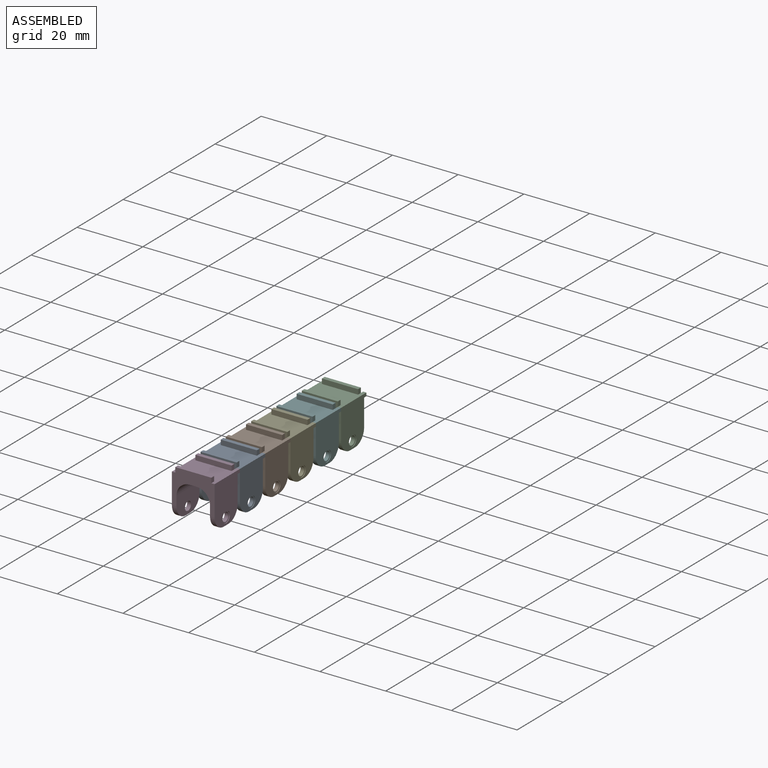
[diagram: assembled view]
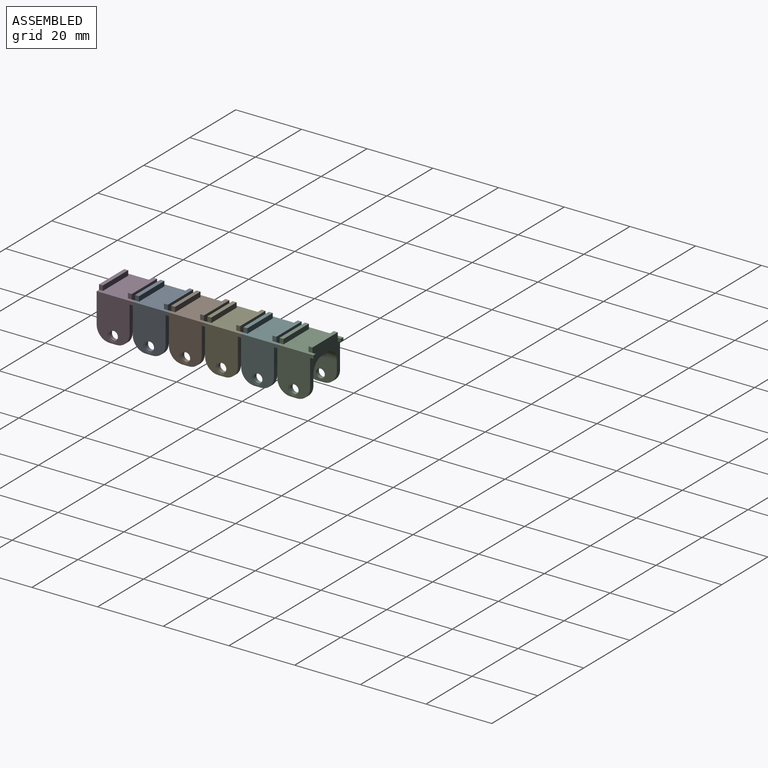
[diagram: assembled view, second angle]
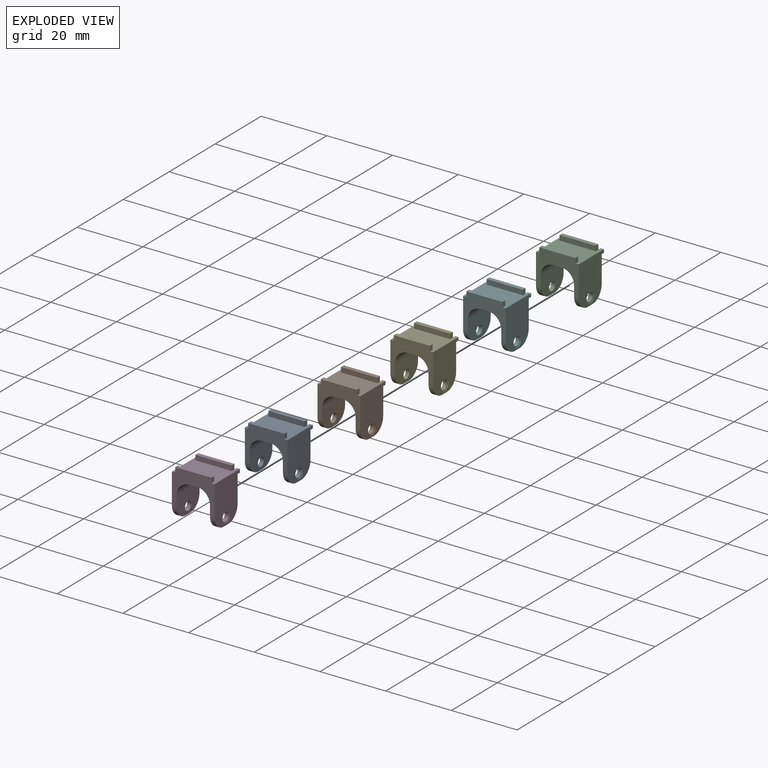
[diagram: exploded view]
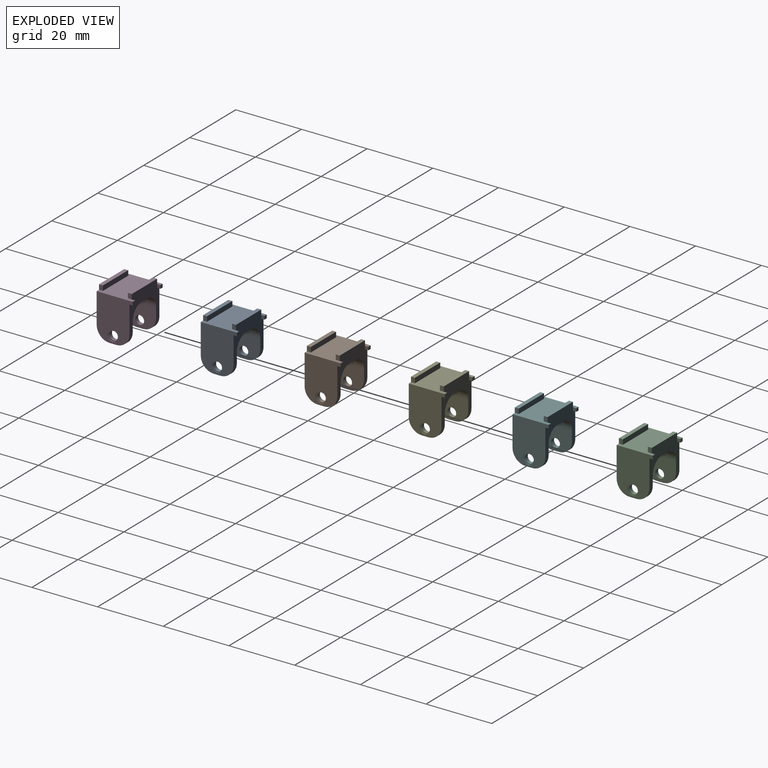
[diagram: exploded view, second angle]
ASSEMBLY  parts=6 mates=5
PART A: 36 faces, bbox 13x11x14.7 mm
  f0: plane 13x10.7mm, normal (0,1,0), area 69.6mm2, adj f8,f9,f13,f14,f15,f17,f18,f19
  f1: plane 13x11mm, normal (0,0,1), area 105.6mm2, adj f5,f8,f9,f22,f23,f24,f26,f27
  f2: plane 2x1.4mm, normal (0,0,-1), area 2.8mm2, adj f8,f13,f20,f21
  f3: cylinder r=1.32mm len=2.65mm, axis (-1,0,0), area 10mm2, adj f12,f14
  f4: cylinder r=1.65mm len=3.3mm, axis (-1,0,0), area 2.1mm2, adj f9,f12
  f5: plane 13x10.7mm, normal (0,-1,0), area 71.6mm2, adj f1,f8,f9,f13,f14,f15,f16,f18
  f6: plane 2x1.4mm, normal (0,0,-1), area 2.8mm2, adj f9,f14,f16,f17
  f7: cylinder r=1.65mm len=3.3mm, axis (-1,0,0), area 2.1mm2, adj f8,f11
  f8: plane 13.2x11mm, normal (1,0,0), area 117.6mm2, adj f0,f1,f2,f5,f7,f20,f21,f33
  f9: plane 13.2x11mm, normal (-1,0,0), area 117.6mm2, adj f0,f1,f4,f5,f6,f16,f17,f30
  f10: cylinder r=1.32mm len=2.65mm, axis (-1,0,0), area 10mm2, adj f11,f13
  f11: plane 3.3x3.3mm, normal (1,0,0), area 3mm2, adj f7,f10
  f12: plane 3.3x3.3mm, normal (-1,0,0), area 3mm2, adj f3,f4
  f13: plane 10x7mm, normal (-1,0,0), area 57.6mm2, adj f0,f2,f5,f10,f18,f20,f21
  f14: plane 10x7mm, normal (1,0,0), area 57.6mm2, adj f0,f3,f5,f6,f16,f17,f19
  f15: plane 10x2.2mm, normal (0,0,-1), area 22mm2, adj f0,f5,f18,f19
  f16: cylinder r=4mm len=4mm, axis (-1,0,0), area 8.8mm2, adj f5,f6,f9,f14
  f17: cylinder r=4mm len=4mm, axis (1,0,0), area 8.8mm2, adj f0,f6,f9,f14
  f18: cylinder r=4mm len=10mm, axis (0,-1,0), area 62.8mm2, adj f0,f5,f13,f15
  f19: cylinder r=4mm len=10mm, axis (0,1,0), area 62.8mm2, adj f0,f5,f14,f15
  f20: cylinder r=4mm len=4mm, axis (-1,0,0), area 8.8mm2, adj f2,f5,f8,f13
  f21: cylinder r=4mm len=4mm, axis (1,0,0), area 8.8mm2, adj f0,f2,f8,f13
  f22: plane 1.5x1.2mm, normal (-1,0,0), area 1.8mm2, adj f0,f1,f23,f25
  f23: plane 11x1.5mm, normal (0,-1,0), area 16.5mm2, adj f1,f22,f24,f25
  f24: plane 1.5x1.2mm, normal (1,0,0), area 1.8mm2, adj f0,f1,f23,f25
  f25: plane 11x1.2mm, normal (0,0,1), area 13.2mm2, adj f0,f22,f23,f24
  f26: plane 1.5x1.2mm, normal (-1,0,0), area 1.8mm2, adj f1,f5,f28,f29
  f27: plane 1.5x1.2mm, normal (1,0,0), area 1.8mm2, adj f1,f5,f28,f29
  f28: plane 11x1.5mm, normal (0,1,0), area 16.5mm2, adj f1,f26,f27,f29
  f29: plane 11x1.2mm, normal (0,0,1), area 13.2mm2, adj f5,f26,f27,f28
  f30: plane 1x1mm, normal (0,0,-1), area 1mm2, adj f0,f9,f31,f32
  f31: plane 1x1mm, normal (1,0,0), area 1mm2, adj f0,f1,f30,f32
  f32: plane 1x1mm, normal (0,1,0), area 1mm2, adj f1,f9,f30,f31
  f33: plane 1x1mm, normal (0,0,-1), area 1mm2, adj f0,f8,f34,f35
  f34: plane 1x1mm, normal (-1,0,0), area 1mm2, adj f0,f1,f33,f35
  f35: plane 1x1mm, normal (0,1,0), area 1mm2, adj f1,f8,f33,f34
PART B: same geometry as A
PART C: same geometry as A
PART D: same geometry as A
PART E: same geometry as A
PART F: same geometry as A
PLACE A t=(6.06,-13.51,-1.91)mm
PLACE B t=(6.06,-2.51,-1.91)mm
PLACE C t=(6.06,30.49,-1.91)mm
PLACE D t=(6.06,-24.51,-1.91)mm
PLACE E t=(6.06,8.49,-1.91)mm
PLACE F t=(6.06,19.49,-1.91)mm fixed
MATE fastened D.f35 <-> A.f5  axis (0,1,0) through (12.56,-18.51,9.09)mm
MATE fastened C.f5 <-> F.f35  axis (0,-1,0) through (12.56,25.49,9.09)mm
MATE fastened F.f5 <-> E.f35  axis (0,-1,0) through (12.56,14.49,9.09)mm
MATE fastened A.f35 <-> B.f5  axis (0,1,0) through (12.56,-7.51,9.09)mm
MATE fastened B.f35 <-> E.f5  axis (0,1,0) through (12.56,3.49,9.09)mm
